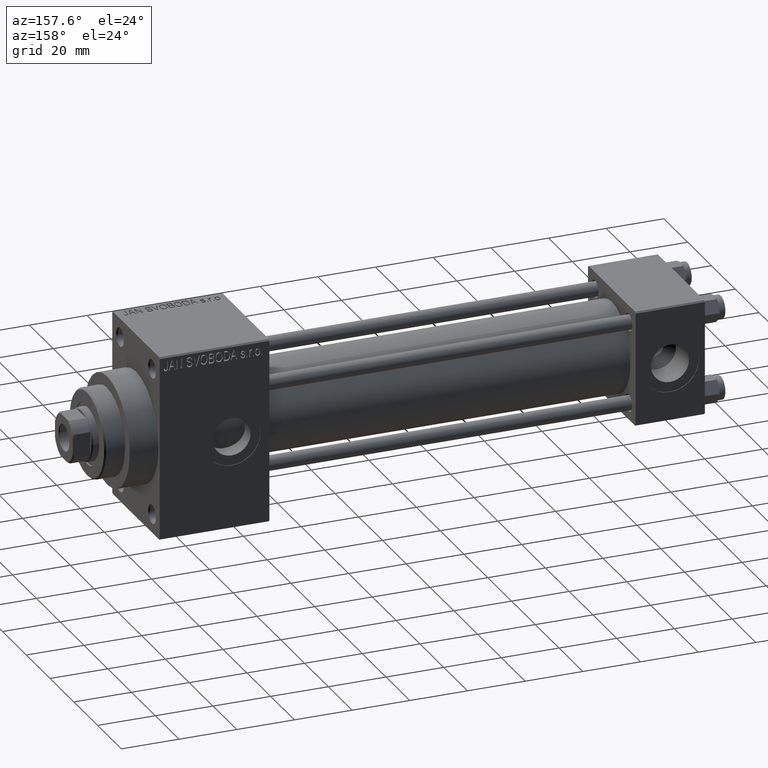
[diagram: clean part render]
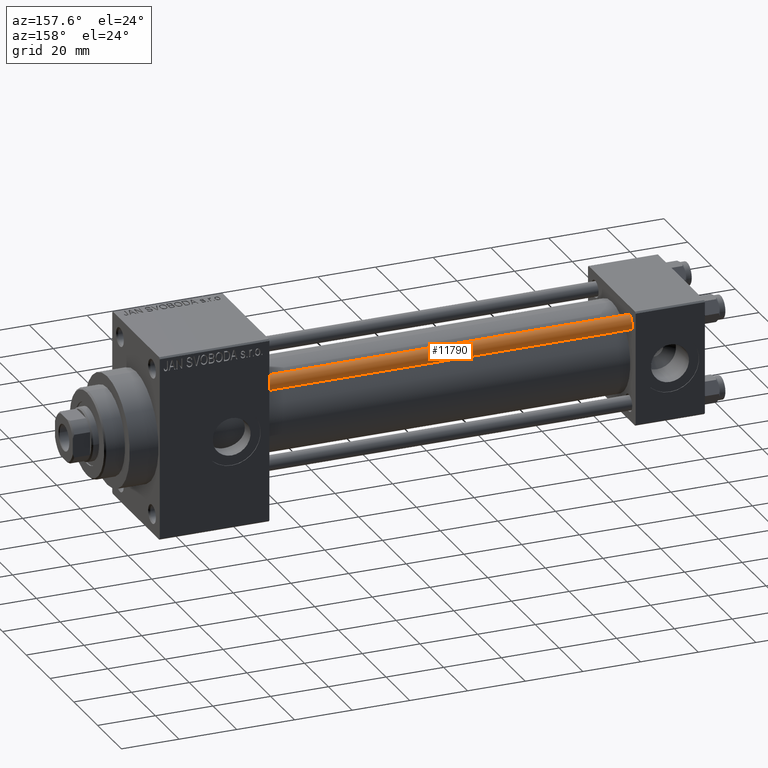
[diagram: same view with one face highlighted and labeled with its STEP entity id]
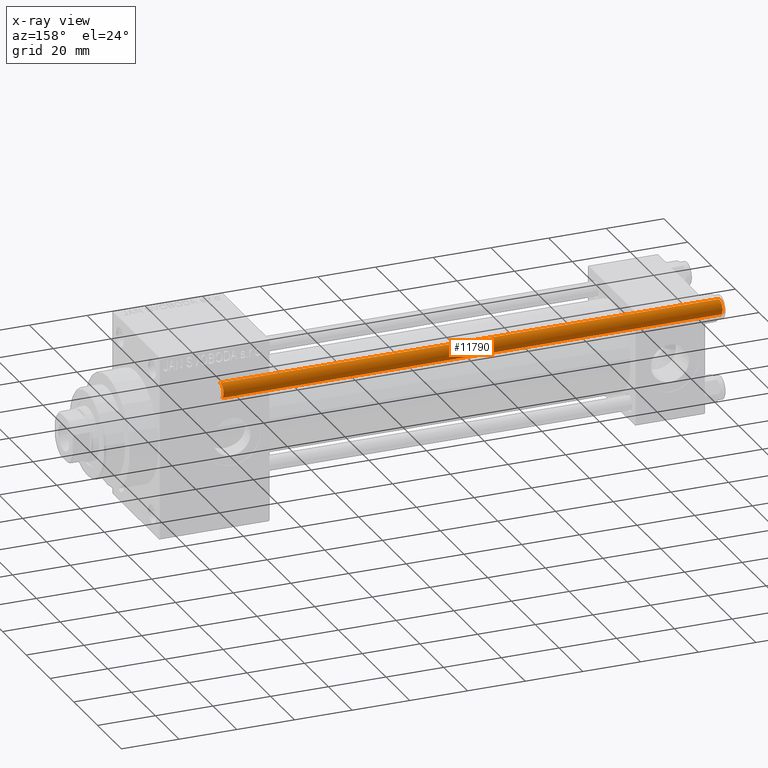
[diagram: x-ray of the same camera — body ghosted, the highlighted face saturated]
A machine part, auxiliary view. The second image highlights one B-rep face of the part: STEP entity #11790.
The next image is the same camera in x-ray: the body ghosted, the highlighted face saturated — about 0% of this face is hidden behind the body in this view.
In plain terms, the highlighted cylindrical surface (edge-blend (fillet) strip) has radius 2.5 mm, axis along (-1, -0, 0).
Its self-contained STEP definition (entity closure, byte-faithful):
#1418 = ORIENTED_EDGE ( 'NONE', *, *, #15713, .T. ) ;
#2281 = DIRECTION ( 'NONE',  ( -0.000000000000000000, -0.000000000000000000, 1.000000000000000000 ) ) ;
#5173 = DIRECTION ( 'NONE',  ( -1.000000000000000000, 0.000000000000000000, 0.000000000000000000 ) ) ;
#6315 = CARTESIAN_POINT ( 'NONE',  ( 0.000000000000000000, 0.000000000000000000, 0.5000000000000281997 ) ) ;
#6917 = VERTEX_POINT ( 'NONE', #22534 ) ;
#7006 = VECTOR ( 'NONE', #24767, 1000.000000000000000 ) ;
#7019 = ORIENTED_EDGE ( 'NONE', *, *, #40156, .T. ) ;
#8722 = AXIS2_PLACEMENT_3D ( 'NONE', #16349, #20148, #5173 ) ;
#10259 = CARTESIAN_POINT ( 'NONE',  ( 2.500000000000000000, 3.061616997868383141E-16, 174.0000000000000000 ) ) ;
#10951 = VECTOR ( 'NONE', #44787, 1000.000000000000000 ) ;
#11790 = ADVANCED_FACE ( 'NONE', ( #30615 ), #27053, .T. ) ;
#15713 = EDGE_CURVE ( 'NONE', #6917, #39470, #19445, .T. ) ;
#16349 = CARTESIAN_POINT ( 'NONE',  ( 0.000000000000000000, 0.000000000000000000, 174.0000000000000000 ) ) ;
#16533 = DIRECTION ( 'NONE',  ( 1.000000000000000000, 0.000000000000000000, 0.000000000000000000 ) ) ;
#16746 = VERTEX_POINT ( 'NONE', #37732 ) ;
#19445 = CIRCLE ( 'NONE', #46045, 2.500000000000000000 ) ;
#20148 = DIRECTION ( 'NONE',  ( -0.000000000000000000, -0.000000000000000000, -1.000000000000000000 ) ) ;
#20275 = LINE ( 'NONE', #27172, #10951 ) ;
#21924 = EDGE_LOOP ( 'NONE', ( #43586, #7019, #1418, #26523 ) ) ;
#22534 = CARTESIAN_POINT ( 'NONE',  ( 2.500000000000000000, 3.061616997868383141E-16, 0.5000000000000281997 ) ) ;
#22934 = CIRCLE ( 'NONE', #24468, 2.500000000000000000 ) ;
#23679 = CARTESIAN_POINT ( 'NONE',  ( 0.000000000000000000, 0.000000000000000000, 173.5000000000000000 ) ) ;
#24468 = AXIS2_PLACEMENT_3D ( 'NONE', #23679, #38174, #16533 ) ;
#24767 = DIRECTION ( 'NONE',  ( -0.000000000000000000, -0.000000000000000000, -1.000000000000000000 ) ) ;
#26523 = ORIENTED_EDGE ( 'NONE', *, *, #45425, .F. ) ;
#27053 = CYLINDRICAL_SURFACE ( 'NONE', #8722, 2.500000000000000000 ) ;
#27172 = CARTESIAN_POINT ( 'NONE',  ( -2.500000000000000000, 0.000000000000000000, 174.0000000000000000 ) ) ;
#28427 = DIRECTION ( 'NONE',  ( 1.000000000000000000, 0.000000000000000000, 0.000000000000000000 ) ) ;
#30615 = FACE_OUTER_BOUND ( 'NONE', #21924, .T. ) ;
#31931 = VERTEX_POINT ( 'NONE', #42244 ) ;
#35473 = LINE ( 'NONE', #10259, #7006 ) ;
#36747 = EDGE_CURVE ( 'NONE', #16746, #31931, #22934, .T. ) ;
#37732 = CARTESIAN_POINT ( 'NONE',  ( -2.500000000000000000, 0.000000000000000000, 173.5000000000000000 ) ) ;
#38174 = DIRECTION ( 'NONE',  ( 0.000000000000000000, 0.000000000000000000, -1.000000000000000000 ) ) ;
#39470 = VERTEX_POINT ( 'NONE', #42235 ) ;
#40156 = EDGE_CURVE ( 'NONE', #31931, #6917, #35473, .T. ) ;
#42235 = CARTESIAN_POINT ( 'NONE',  ( -2.500000000000000000, 0.000000000000000000, 0.5000000000000281997 ) ) ;
#42244 = CARTESIAN_POINT ( 'NONE',  ( 2.500000000000000000, 3.061616997868383141E-16, 173.5000000000000000 ) ) ;
#43586 = ORIENTED_EDGE ( 'NONE', *, *, #36747, .T. ) ;
#44787 = DIRECTION ( 'NONE',  ( -0.000000000000000000, -0.000000000000000000, -1.000000000000000000 ) ) ;
#45425 = EDGE_CURVE ( 'NONE', #16746, #39470, #20275, .T. ) ;
#46045 = AXIS2_PLACEMENT_3D ( 'NONE', #6315, #2281, #28427 ) ;